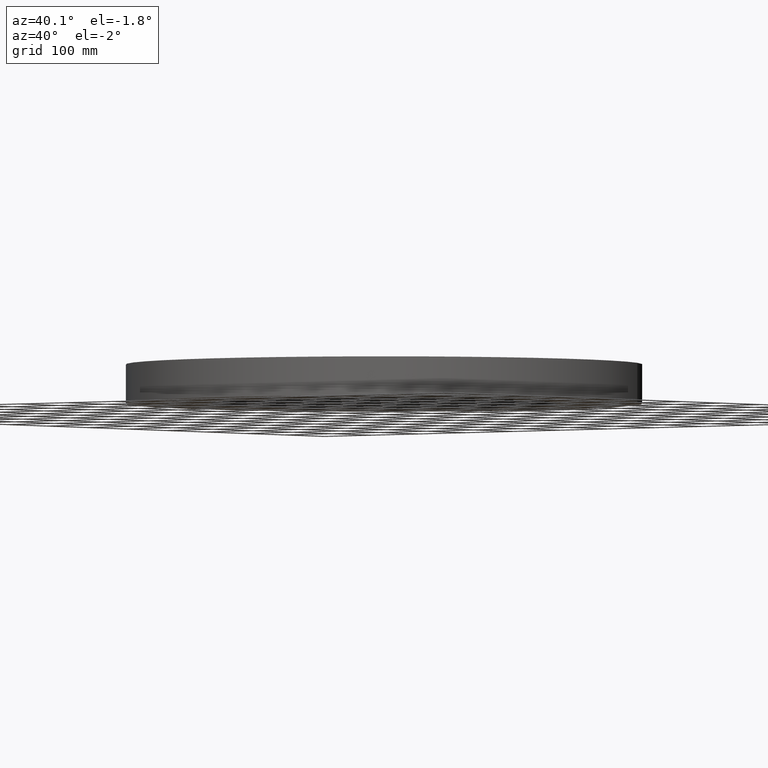
[diagram: clean part render]
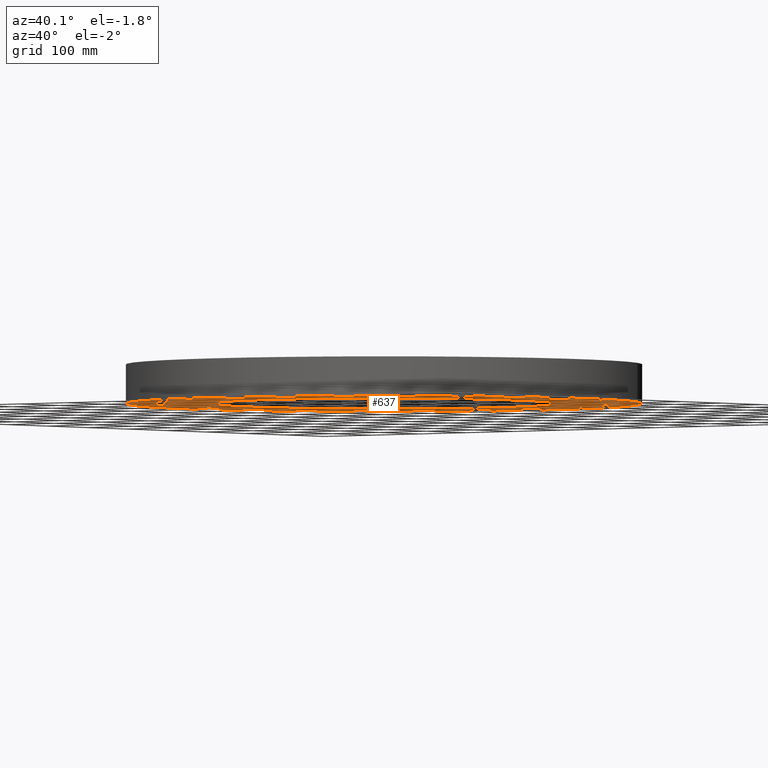
[diagram: same view with one face highlighted and labeled with its STEP entity id]
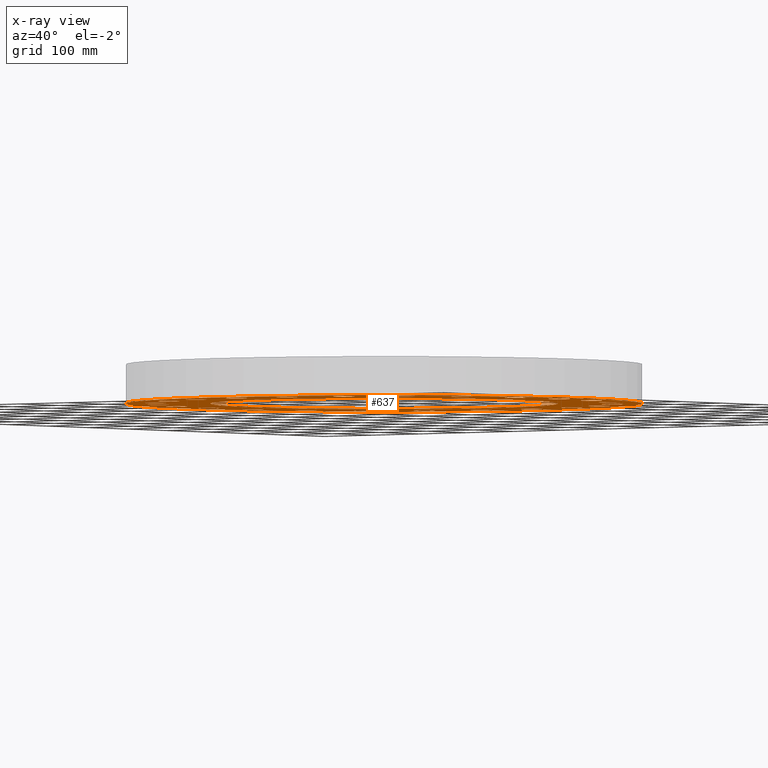
[diagram: x-ray of the same camera — body ghosted, the highlighted face saturated]
A machine part, auxiliary view. The second image highlights one B-rep face of the part: STEP entity #637.
The next image is the same camera in x-ray: the body ghosted, the highlighted face saturated — about 0% of this face is hidden behind the body in this view.
In plain terms, the highlighted planar face has unit normal (0, 0, 1).
Its self-contained STEP definition (entity closure, byte-faithful):
#51=AXIS2_PLACEMENT_3D('Circle Axis2P3D',#49,#50,$) ;
#77=AXIS2_PLACEMENT_3D('Circle Axis2P3D',#75,#76,$) ;
#122=AXIS2_PLACEMENT_3D('Circle Axis2P3D',#120,#121,$) ;
#139=AXIS2_PLACEMENT_3D('Circle Axis2P3D',#137,#138,$) ;
#165=AXIS2_PLACEMENT_3D('Circle Axis2P3D',#163,#164,$) ;
#191=AXIS2_PLACEMENT_3D('Circle Axis2P3D',#189,#190,$) ;
#209=AXIS2_PLACEMENT_3D('Plane Axis2P3D',#206,#207,#208) ;
#225=AXIS2_PLACEMENT_3D('Circle Axis2P3D',#223,#224,$) ;
#234=AXIS2_PLACEMENT_3D('Circle Axis2P3D',#232,#233,$) ;
#243=AXIS2_PLACEMENT_3D('Circle Axis2P3D',#241,#242,$) ;
#252=AXIS2_PLACEMENT_3D('Circle Axis2P3D',#250,#251,$) ;
#261=AXIS2_PLACEMENT_3D('Circle Axis2P3D',#259,#260,$) ;
#270=AXIS2_PLACEMENT_3D('Circle Axis2P3D',#268,#269,$) ;
#279=AXIS2_PLACEMENT_3D('Circle Axis2P3D',#277,#278,$) ;
#288=AXIS2_PLACEMENT_3D('Circle Axis2P3D',#286,#287,$) ;
#297=AXIS2_PLACEMENT_3D('Circle Axis2P3D',#295,#296,$) ;
#306=AXIS2_PLACEMENT_3D('Circle Axis2P3D',#304,#305,$) ;
#315=AXIS2_PLACEMENT_3D('Circle Axis2P3D',#313,#314,$) ;
#324=AXIS2_PLACEMENT_3D('Circle Axis2P3D',#322,#323,$) ;
#333=AXIS2_PLACEMENT_3D('Circle Axis2P3D',#331,#332,$) ;
#342=AXIS2_PLACEMENT_3D('Circle Axis2P3D',#340,#341,$) ;
#351=AXIS2_PLACEMENT_3D('Circle Axis2P3D',#349,#350,$) ;
#360=AXIS2_PLACEMENT_3D('Circle Axis2P3D',#358,#359,$) ;
#369=AXIS2_PLACEMENT_3D('Circle Axis2P3D',#367,#368,$) ;
#378=AXIS2_PLACEMENT_3D('Circle Axis2P3D',#376,#377,$) ;
#387=AXIS2_PLACEMENT_3D('Circle Axis2P3D',#385,#386,$) ;
#396=AXIS2_PLACEMENT_3D('Circle Axis2P3D',#394,#395,$) ;
#405=AXIS2_PLACEMENT_3D('Circle Axis2P3D',#403,#404,$) ;
#414=AXIS2_PLACEMENT_3D('Circle Axis2P3D',#412,#413,$) ;
#423=AXIS2_PLACEMENT_3D('Circle Axis2P3D',#421,#422,$) ;
#432=AXIS2_PLACEMENT_3D('Circle Axis2P3D',#430,#431,$) ;
#441=AXIS2_PLACEMENT_3D('Circle Axis2P3D',#439,#440,$) ;
#450=AXIS2_PLACEMENT_3D('Circle Axis2P3D',#448,#449,$) ;
#459=AXIS2_PLACEMENT_3D('Circle Axis2P3D',#457,#458,$) ;
#468=AXIS2_PLACEMENT_3D('Circle Axis2P3D',#466,#467,$) ;
#477=AXIS2_PLACEMENT_3D('Circle Axis2P3D',#475,#476,$) ;
#486=AXIS2_PLACEMENT_3D('Circle Axis2P3D',#484,#485,$) ;
#495=AXIS2_PLACEMENT_3D('Circle Axis2P3D',#493,#494,$) ;
#504=AXIS2_PLACEMENT_3D('Circle Axis2P3D',#502,#503,$) ;
#513=AXIS2_PLACEMENT_3D('Circle Axis2P3D',#511,#512,$) ;
#522=AXIS2_PLACEMENT_3D('Circle Axis2P3D',#520,#521,$) ;
#531=AXIS2_PLACEMENT_3D('Circle Axis2P3D',#529,#530,$) ;
#540=AXIS2_PLACEMENT_3D('Circle Axis2P3D',#538,#539,$) ;
#549=AXIS2_PLACEMENT_3D('Circle Axis2P3D',#547,#548,$) ;
#558=AXIS2_PLACEMENT_3D('Circle Axis2P3D',#556,#557,$) ;
#567=AXIS2_PLACEMENT_3D('Circle Axis2P3D',#565,#566,$) ;
#576=AXIS2_PLACEMENT_3D('Circle Axis2P3D',#574,#575,$) ;
#585=AXIS2_PLACEMENT_3D('Circle Axis2P3D',#583,#584,$) ;
#594=AXIS2_PLACEMENT_3D('Circle Axis2P3D',#592,#593,$) ;
#603=AXIS2_PLACEMENT_3D('Circle Axis2P3D',#601,#602,$) ;
#612=AXIS2_PLACEMENT_3D('Circle Axis2P3D',#610,#611,$) ;
#621=AXIS2_PLACEMENT_3D('Circle Axis2P3D',#619,#620,$) ;
#630=AXIS2_PLACEMENT_3D('Circle Axis2P3D',#628,#629,$) ;
#44=CARTESIAN_POINT('Vertex',(14.0216619888,0.329605057792,0.)) ;
#49=CARTESIAN_POINT('Axis2P3D Location',(14.6250000001,0.,0.)) ;
#53=CARTESIAN_POINT('Vertex',(15.2283380114,-0.329605057792,0.)) ;
#75=CARTESIAN_POINT('Axis2P3D Location',(14.6250000001,0.,0.)) ;
#101=CARTESIAN_POINT('Vertex',(14.4801122712,7.910521387,1.39870617276E-016)) ;
#117=CARTESIAN_POINT('Vertex',(-14.4801122712,-7.910521387,1.39870617276E-016)) ;
#120=CARTESIAN_POINT('Axis2P3D Location',(0.,0.,0.)) ;
#137=CARTESIAN_POINT('Axis2P3D Location',(0.,0.,0.)) ;
#158=CARTESIAN_POINT('Vertex',(-9.73677852421,5.31922635083,0.)) ;
#163=CARTESIAN_POINT('Axis2P3D Location',(-6.64385432059E-016,-2.09805925913E-016,0.)) ;
#167=CARTESIAN_POINT('Vertex',(9.73677852421,-5.31922635083,0.)) ;
#189=CARTESIAN_POINT('Axis2P3D Location',(-6.64385432059E-016,-2.09805925913E-016,0.)) ;
#206=CARTESIAN_POINT('Axis2P3D Location',(0.,0.,0.)) ;
#223=CARTESIAN_POINT('Axis2P3D Location',(14.1266652095,3.78522853464,0.)) ;
#227=CARTESIAN_POINT('Vertex',(13.4585773761,3.94744720448,0.)) ;
#229=CARTESIAN_POINT('Vertex',(14.794753043,3.6230098648,0.)) ;
#232=CARTESIAN_POINT('Axis2P3D Location',(14.1266652095,3.78522853464,0.)) ;
#241=CARTESIAN_POINT('Axis2P3D Location',(12.6656215304,7.31250000003,0.)) ;
#245=CARTESIAN_POINT('Vertex',(11.9783129566,7.29627734764,0.)) ;
#247=CARTESIAN_POINT('Vertex',(13.3529301042,7.32872265242,0.)) ;
#250=CARTESIAN_POINT('Axis2P3D Location',(12.6656215304,7.31250000003,0.)) ;
#259=CARTESIAN_POINT('Axis2P3D Location',(10.3414366749,10.3414366749,0.)) ;
#263=CARTESIAN_POINT('Vertex',(9.68174630428,10.1478782472,0.)) ;
#265=CARTESIAN_POINT('Vertex',(11.0011270455,10.5349951026,0.)) ;
#268=CARTESIAN_POINT('Axis2P3D Location',(10.3414366749,10.3414366749,0.)) ;
#277=CARTESIAN_POINT('Axis2P3D Location',(7.31250000003,12.6656215304,0.)) ;
#281=CARTESIAN_POINT('Vertex',(6.72538464111,12.3079180144,0.)) ;
#283=CARTESIAN_POINT('Vertex',(7.89961535894,13.0233250464,0.)) ;
#286=CARTESIAN_POINT('Axis2P3D Location',(7.31250000003,12.6656215304,0.)) ;
#295=CARTESIAN_POINT('Axis2P3D Location',(3.78522853464,14.1266652095,0.)) ;
#299=CARTESIAN_POINT('Vertex',(3.31069912888,13.6291935088,0.)) ;
#301=CARTESIAN_POINT('Vertex',(4.2597579404,14.6241369103,0.)) ;
#304=CARTESIAN_POINT('Axis2P3D Location',(3.78522853464,14.1266652095,0.)) ;
#313=CARTESIAN_POINT('Axis2P3D Location',(-1.39870617276E-015,14.6250000001,0.)) ;
#317=CARTESIAN_POINT('Vertex',(-0.329605057792,14.0216619888,0.)) ;
#319=CARTESIAN_POINT('Vertex',(0.329605057792,15.2283380114,0.)) ;
#322=CARTESIAN_POINT('Axis2P3D Location',(-4.19611851827E-016,14.6250000001,0.)) ;
#331=CARTESIAN_POINT('Axis2P3D Location',(-3.78522853464,14.1266652095,0.)) ;
#335=CARTESIAN_POINT('Vertex',(-3.94744720448,13.4585773761,0.)) ;
#337=CARTESIAN_POINT('Vertex',(-3.6230098648,14.794753043,0.)) ;
#340=CARTESIAN_POINT('Axis2P3D Location',(-3.78522853464,14.1266652095,0.)) ;
#349=CARTESIAN_POINT('Axis2P3D Location',(-7.31250000003,12.6656215304,0.)) ;
#353=CARTESIAN_POINT('Vertex',(-7.29627734764,11.9783129566,0.)) ;
#355=CARTESIAN_POINT('Vertex',(-7.32872265242,13.3529301042,0.)) ;
#358=CARTESIAN_POINT('Axis2P3D Location',(-7.31250000003,12.6656215304,0.)) ;
#367=CARTESIAN_POINT('Axis2P3D Location',(-10.3414366749,10.3414366749,0.)) ;
#371=CARTESIAN_POINT('Vertex',(-10.1478782472,9.68174630428,0.)) ;
#373=CARTESIAN_POINT('Vertex',(-10.5349951026,11.0011270455,0.)) ;
#376=CARTESIAN_POINT('Axis2P3D Location',(-10.3414366749,10.3414366749,0.)) ;
#385=CARTESIAN_POINT('Axis2P3D Location',(-12.6656215304,7.31250000003,0.)) ;
#389=CARTESIAN_POINT('Vertex',(-12.3079180144,6.72538464111,0.)) ;
#391=CARTESIAN_POINT('Vertex',(-13.0233250464,7.89961535894,0.)) ;
#394=CARTESIAN_POINT('Axis2P3D Location',(-12.6656215304,7.31250000003,0.)) ;
#403=CARTESIAN_POINT('Axis2P3D Location',(-14.1266652095,3.78522853464,0.)) ;
#407=CARTESIAN_POINT('Vertex',(-13.6291935088,3.31069912888,0.)) ;
#409=CARTESIAN_POINT('Vertex',(-14.6241369103,4.2597579404,0.)) ;
#412=CARTESIAN_POINT('Axis2P3D Location',(-14.1266652095,3.78522853464,0.)) ;
#421=CARTESIAN_POINT('Axis2P3D Location',(-14.6250000001,2.23792987641E-015,0.)) ;
#425=CARTESIAN_POINT('Vertex',(-14.0216619888,-0.329605057792,0.)) ;
#427=CARTESIAN_POINT('Vertex',(-15.2283380114,0.329605057792,0.)) ;
#430=CARTESIAN_POINT('Axis2P3D Location',(-14.6250000001,2.30786518505E-015,0.)) ;
#439=CARTESIAN_POINT('Axis2P3D Location',(-14.1266652095,-3.78522853464,0.)) ;
#443=CARTESIAN_POINT('Vertex',(-13.4585773761,-3.94744720448,0.)) ;
#445=CARTESIAN_POINT('Vertex',(-14.794753043,-3.6230098648,0.)) ;
#448=CARTESIAN_POINT('Axis2P3D Location',(-14.1266652095,-3.78522853464,0.)) ;
#457=CARTESIAN_POINT('Axis2P3D Location',(-12.6656215304,-7.31250000003,0.)) ;
#461=CARTESIAN_POINT('Vertex',(-11.9783129566,-7.29627734764,0.)) ;
#463=CARTESIAN_POINT('Vertex',(-13.3529301042,-7.32872265242,0.)) ;
#466=CARTESIAN_POINT('Axis2P3D Location',(-12.6656215304,-7.31250000003,0.)) ;
#475=CARTESIAN_POINT('Axis2P3D Location',(-10.3414366749,-10.3414366749,0.)) ;
#479=CARTESIAN_POINT('Vertex',(-9.68174630428,-10.1478782472,0.)) ;
#481=CARTESIAN_POINT('Vertex',(-11.0011270455,-10.5349951026,0.)) ;
#484=CARTESIAN_POINT('Axis2P3D Location',(-10.3414366749,-10.3414366749,0.)) ;
#493=CARTESIAN_POINT('Axis2P3D Location',(-7.31250000003,-12.6656215304,0.)) ;
#497=CARTESIAN_POINT('Vertex',(-6.72538464111,-12.3079180144,0.)) ;
#499=CARTESIAN_POINT('Vertex',(-7.89961535894,-13.0233250464,0.)) ;
#502=CARTESIAN_POINT('Axis2P3D Location',(-7.31250000003,-12.6656215304,0.)) ;
#511=CARTESIAN_POINT('Axis2P3D Location',(-3.78522853464,-14.1266652095,0.)) ;
#515=CARTESIAN_POINT('Vertex',(-3.31069912888,-13.6291935088,0.)) ;
#517=CARTESIAN_POINT('Vertex',(-4.2597579404,-14.6241369103,0.)) ;
#520=CARTESIAN_POINT('Axis2P3D Location',(-3.78522853464,-14.1266652095,0.)) ;
#529=CARTESIAN_POINT('Axis2P3D Location',(-2.44773580232E-015,-14.6250000001,0.)) ;
#533=CARTESIAN_POINT('Vertex',(0.329605057792,-14.0216619888,0.)) ;
#535=CARTESIAN_POINT('Vertex',(-0.329605057792,-15.2283380114,0.)) ;
#538=CARTESIAN_POINT('Axis2P3D Location',(-3.7065713578E-015,-14.6250000001,0.)) ;
#547=CARTESIAN_POINT('Axis2P3D Location',(3.78522853464,-14.1266652095,0.)) ;
#551=CARTESIAN_POINT('Vertex',(3.94744720448,-13.4585773761,0.)) ;
#553=CARTESIAN_POINT('Vertex',(3.6230098648,-14.794753043,0.)) ;
#556=CARTESIAN_POINT('Axis2P3D Location',(3.78522853464,-14.1266652095,0.)) ;
#565=CARTESIAN_POINT('Axis2P3D Location',(7.31250000003,-12.6656215304,0.)) ;
#569=CARTESIAN_POINT('Vertex',(7.29627734764,-11.9783129566,0.)) ;
#571=CARTESIAN_POINT('Vertex',(7.32872265242,-13.3529301042,0.)) ;
#574=CARTESIAN_POINT('Axis2P3D Location',(7.31250000003,-12.6656215304,0.)) ;
#583=CARTESIAN_POINT('Axis2P3D Location',(10.3414366749,-10.3414366749,0.)) ;
#587=CARTESIAN_POINT('Vertex',(10.1478782472,-9.68174630428,0.)) ;
#589=CARTESIAN_POINT('Vertex',(10.5349951026,-11.0011270455,0.)) ;
#592=CARTESIAN_POINT('Axis2P3D Location',(10.3414366749,-10.3414366749,0.)) ;
#601=CARTESIAN_POINT('Axis2P3D Location',(12.6656215304,-7.31250000003,0.)) ;
#605=CARTESIAN_POINT('Vertex',(12.3079180144,-6.72538464111,0.)) ;
#607=CARTESIAN_POINT('Vertex',(13.0233250464,-7.89961535894,0.)) ;
#610=CARTESIAN_POINT('Axis2P3D Location',(12.6656215304,-7.31250000003,0.)) ;
#619=CARTESIAN_POINT('Axis2P3D Location',(14.1266652095,-3.78522853464,0.)) ;
#623=CARTESIAN_POINT('Vertex',(13.6291935088,-3.31069912888,0.)) ;
#625=CARTESIAN_POINT('Vertex',(14.6241369103,-4.2597579404,0.)) ;
#628=CARTESIAN_POINT('Axis2P3D Location',(14.1266652095,-3.78522853464,0.)) ;
#50=DIRECTION('Axis2P3D Direction',(0.,-0.,-0.0393700787402)) ;
#76=DIRECTION('Axis2P3D Direction',(0.,-0.,-0.0393700787402)) ;
#121=DIRECTION('Axis2P3D Direction',(0.,0.,0.0393700787402)) ;
#138=DIRECTION('Axis2P3D Direction',(0.,0.,0.0393700787402)) ;
#164=DIRECTION('Axis2P3D Direction',(0.,-0.,-0.0393700787402)) ;
#190=DIRECTION('Axis2P3D Direction',(0.,-0.,-0.0393700787402)) ;
#207=DIRECTION('Axis2P3D Direction',(0.,0.,0.0393700787402)) ;
#208=DIRECTION('Axis2P3D XDirection',(0.0393700787402,0.,0.)) ;
#224=DIRECTION('Axis2P3D Direction',(0.,0.,0.0393700787402)) ;
#233=DIRECTION('Axis2P3D Direction',(0.,0.,0.0393700787402)) ;
#242=DIRECTION('Axis2P3D Direction',(0.,0.,0.0393700787402)) ;
#251=DIRECTION('Axis2P3D Direction',(0.,0.,0.0393700787402)) ;
#260=DIRECTION('Axis2P3D Direction',(0.,0.,0.0393700787402)) ;
#269=DIRECTION('Axis2P3D Direction',(0.,0.,0.0393700787402)) ;
#278=DIRECTION('Axis2P3D Direction',(0.,0.,0.0393700787402)) ;
#287=DIRECTION('Axis2P3D Direction',(0.,0.,0.0393700787402)) ;
#296=DIRECTION('Axis2P3D Direction',(0.,0.,0.0393700787402)) ;
#305=DIRECTION('Axis2P3D Direction',(0.,0.,0.0393700787402)) ;
#314=DIRECTION('Axis2P3D Direction',(0.,0.,0.0393700787402)) ;
#323=DIRECTION('Axis2P3D Direction',(0.,0.,0.0393700787402)) ;
#332=DIRECTION('Axis2P3D Direction',(0.,0.,0.0393700787402)) ;
#341=DIRECTION('Axis2P3D Direction',(0.,0.,0.0393700787402)) ;
#350=DIRECTION('Axis2P3D Direction',(0.,0.,0.0393700787402)) ;
#359=DIRECTION('Axis2P3D Direction',(0.,0.,0.0393700787402)) ;
#368=DIRECTION('Axis2P3D Direction',(0.,0.,0.0393700787402)) ;
#377=DIRECTION('Axis2P3D Direction',(0.,0.,0.0393700787402)) ;
#386=DIRECTION('Axis2P3D Direction',(0.,0.,0.0393700787402)) ;
#395=DIRECTION('Axis2P3D Direction',(0.,0.,0.0393700787402)) ;
#404=DIRECTION('Axis2P3D Direction',(0.,0.,0.0393700787402)) ;
#413=DIRECTION('Axis2P3D Direction',(0.,0.,0.0393700787402)) ;
#422=DIRECTION('Axis2P3D Direction',(0.,0.,0.0393700787402)) ;
#431=DIRECTION('Axis2P3D Direction',(0.,0.,0.0393700787402)) ;
#440=DIRECTION('Axis2P3D Direction',(0.,0.,0.0393700787402)) ;
#449=DIRECTION('Axis2P3D Direction',(0.,0.,0.0393700787402)) ;
#458=DIRECTION('Axis2P3D Direction',(0.,0.,0.0393700787402)) ;
#467=DIRECTION('Axis2P3D Direction',(0.,0.,0.0393700787402)) ;
#476=DIRECTION('Axis2P3D Direction',(0.,0.,0.0393700787402)) ;
#485=DIRECTION('Axis2P3D Direction',(0.,0.,0.0393700787402)) ;
#494=DIRECTION('Axis2P3D Direction',(0.,0.,0.0393700787402)) ;
#503=DIRECTION('Axis2P3D Direction',(0.,0.,0.0393700787402)) ;
#512=DIRECTION('Axis2P3D Direction',(0.,0.,0.0393700787402)) ;
#521=DIRECTION('Axis2P3D Direction',(0.,0.,0.0393700787402)) ;
#530=DIRECTION('Axis2P3D Direction',(0.,0.,0.0393700787402)) ;
#539=DIRECTION('Axis2P3D Direction',(0.,0.,0.0393700787402)) ;
#548=DIRECTION('Axis2P3D Direction',(0.,0.,0.0393700787402)) ;
#557=DIRECTION('Axis2P3D Direction',(0.,0.,0.0393700787402)) ;
#566=DIRECTION('Axis2P3D Direction',(0.,0.,0.0393700787402)) ;
#575=DIRECTION('Axis2P3D Direction',(0.,0.,0.0393700787402)) ;
#584=DIRECTION('Axis2P3D Direction',(0.,0.,0.0393700787402)) ;
#593=DIRECTION('Axis2P3D Direction',(0.,0.,0.0393700787402)) ;
#602=DIRECTION('Axis2P3D Direction',(0.,0.,0.0393700787402)) ;
#611=DIRECTION('Axis2P3D Direction',(0.,0.,0.0393700787402)) ;
#620=DIRECTION('Axis2P3D Direction',(0.,0.,0.0393700787402)) ;
#629=DIRECTION('Axis2P3D Direction',(0.,0.,0.0393700787402)) ;
#212=ORIENTED_EDGE('',*,*,#124,.F.) ;
#213=ORIENTED_EDGE('',*,*,#141,.F.) ;
#216=ORIENTED_EDGE('',*,*,#55,.T.) ;
#217=ORIENTED_EDGE('',*,*,#79,.T.) ;
#220=ORIENTED_EDGE('',*,*,#169,.T.) ;
#221=ORIENTED_EDGE('',*,*,#193,.T.) ;
#238=ORIENTED_EDGE('',*,*,#231,.T.) ;
#239=ORIENTED_EDGE('',*,*,#236,.T.) ;
#256=ORIENTED_EDGE('',*,*,#249,.T.) ;
#257=ORIENTED_EDGE('',*,*,#254,.T.) ;
#274=ORIENTED_EDGE('',*,*,#267,.T.) ;
#275=ORIENTED_EDGE('',*,*,#272,.T.) ;
#292=ORIENTED_EDGE('',*,*,#285,.T.) ;
#293=ORIENTED_EDGE('',*,*,#290,.T.) ;
#310=ORIENTED_EDGE('',*,*,#303,.T.) ;
#311=ORIENTED_EDGE('',*,*,#308,.T.) ;
#328=ORIENTED_EDGE('',*,*,#321,.T.) ;
#329=ORIENTED_EDGE('',*,*,#326,.T.) ;
#346=ORIENTED_EDGE('',*,*,#339,.T.) ;
#347=ORIENTED_EDGE('',*,*,#344,.T.) ;
#364=ORIENTED_EDGE('',*,*,#357,.T.) ;
#365=ORIENTED_EDGE('',*,*,#362,.T.) ;
#382=ORIENTED_EDGE('',*,*,#375,.T.) ;
#383=ORIENTED_EDGE('',*,*,#380,.T.) ;
#400=ORIENTED_EDGE('',*,*,#393,.T.) ;
#401=ORIENTED_EDGE('',*,*,#398,.T.) ;
#418=ORIENTED_EDGE('',*,*,#411,.T.) ;
#419=ORIENTED_EDGE('',*,*,#416,.T.) ;
#436=ORIENTED_EDGE('',*,*,#429,.T.) ;
#437=ORIENTED_EDGE('',*,*,#434,.T.) ;
#454=ORIENTED_EDGE('',*,*,#447,.T.) ;
#455=ORIENTED_EDGE('',*,*,#452,.T.) ;
#472=ORIENTED_EDGE('',*,*,#465,.T.) ;
#473=ORIENTED_EDGE('',*,*,#470,.T.) ;
#490=ORIENTED_EDGE('',*,*,#483,.T.) ;
#491=ORIENTED_EDGE('',*,*,#488,.T.) ;
#508=ORIENTED_EDGE('',*,*,#501,.T.) ;
#509=ORIENTED_EDGE('',*,*,#506,.T.) ;
#526=ORIENTED_EDGE('',*,*,#519,.T.) ;
#527=ORIENTED_EDGE('',*,*,#524,.T.) ;
#544=ORIENTED_EDGE('',*,*,#537,.T.) ;
#545=ORIENTED_EDGE('',*,*,#542,.T.) ;
#562=ORIENTED_EDGE('',*,*,#555,.T.) ;
#563=ORIENTED_EDGE('',*,*,#560,.T.) ;
#580=ORIENTED_EDGE('',*,*,#573,.T.) ;
#581=ORIENTED_EDGE('',*,*,#578,.T.) ;
#598=ORIENTED_EDGE('',*,*,#591,.T.) ;
#599=ORIENTED_EDGE('',*,*,#596,.T.) ;
#616=ORIENTED_EDGE('',*,*,#609,.T.) ;
#617=ORIENTED_EDGE('',*,*,#614,.T.) ;
#634=ORIENTED_EDGE('',*,*,#627,.T.) ;
#635=ORIENTED_EDGE('',*,*,#632,.T.) ;
#218=FACE_BOUND('',#215,.T.) ;
#222=FACE_BOUND('',#219,.T.) ;
#240=FACE_BOUND('',#237,.T.) ;
#258=FACE_BOUND('',#255,.T.) ;
#276=FACE_BOUND('',#273,.T.) ;
#294=FACE_BOUND('',#291,.T.) ;
#312=FACE_BOUND('',#309,.T.) ;
#330=FACE_BOUND('',#327,.T.) ;
#348=FACE_BOUND('',#345,.T.) ;
#366=FACE_BOUND('',#363,.T.) ;
#384=FACE_BOUND('',#381,.T.) ;
#402=FACE_BOUND('',#399,.T.) ;
#420=FACE_BOUND('',#417,.T.) ;
#438=FACE_BOUND('',#435,.T.) ;
#456=FACE_BOUND('',#453,.T.) ;
#474=FACE_BOUND('',#471,.T.) ;
#492=FACE_BOUND('',#489,.T.) ;
#510=FACE_BOUND('',#507,.T.) ;
#528=FACE_BOUND('',#525,.T.) ;
#546=FACE_BOUND('',#543,.T.) ;
#564=FACE_BOUND('',#561,.T.) ;
#582=FACE_BOUND('',#579,.T.) ;
#600=FACE_BOUND('',#597,.T.) ;
#618=FACE_BOUND('',#615,.T.) ;
#636=FACE_BOUND('',#633,.T.) ;
#637=ADVANCED_FACE('PartBody',(#214,#218,#222,#240,#258,#276,#294,#312,#330,#348,#366,#384,#402,#420,#438,#456,#474,#492,#510,#528,#546,#564,#582,#600,#618,#636),#210,.F.) ;
#52=CIRCLE('generated circle',#51,0.687500000003) ;
#78=CIRCLE('generated circle',#77,0.687500000003) ;
#123=CIRCLE('generated circle',#122,16.5000000001) ;
#140=CIRCLE('generated circle',#139,16.5000000001) ;
#166=CIRCLE('generated circle',#165,11.095) ;
#192=CIRCLE('generated circle',#191,11.095) ;
#226=CIRCLE('generated circle',#225,0.687500000003) ;
#235=CIRCLE('generated circle',#234,0.687500000003) ;
#244=CIRCLE('generated circle',#243,0.687500000003) ;
#253=CIRCLE('generated circle',#252,0.687500000003) ;
#262=CIRCLE('generated circle',#261,0.687500000003) ;
#271=CIRCLE('generated circle',#270,0.687500000003) ;
#280=CIRCLE('generated circle',#279,0.687500000003) ;
#289=CIRCLE('generated circle',#288,0.687500000003) ;
#298=CIRCLE('generated circle',#297,0.687500000003) ;
#307=CIRCLE('generated circle',#306,0.687500000003) ;
#316=CIRCLE('generated circle',#315,0.687500000003) ;
#325=CIRCLE('generated circle',#324,0.687500000003) ;
#334=CIRCLE('generated circle',#333,0.687500000003) ;
#343=CIRCLE('generated circle',#342,0.687500000003) ;
#352=CIRCLE('generated circle',#351,0.687500000003) ;
#361=CIRCLE('generated circle',#360,0.687500000003) ;
#370=CIRCLE('generated circle',#369,0.687500000003) ;
#379=CIRCLE('generated circle',#378,0.687500000003) ;
#388=CIRCLE('generated circle',#387,0.687500000003) ;
#397=CIRCLE('generated circle',#396,0.687500000003) ;
#406=CIRCLE('generated circle',#405,0.687500000003) ;
#415=CIRCLE('generated circle',#414,0.687500000003) ;
#424=CIRCLE('generated circle',#423,0.687500000003) ;
#433=CIRCLE('generated circle',#432,0.687500000003) ;
#442=CIRCLE('generated circle',#441,0.687500000003) ;
#451=CIRCLE('generated circle',#450,0.687500000003) ;
#460=CIRCLE('generated circle',#459,0.687500000003) ;
#469=CIRCLE('generated circle',#468,0.687500000003) ;
#478=CIRCLE('generated circle',#477,0.687500000003) ;
#487=CIRCLE('generated circle',#486,0.687500000003) ;
#496=CIRCLE('generated circle',#495,0.687500000003) ;
#505=CIRCLE('generated circle',#504,0.687500000003) ;
#514=CIRCLE('generated circle',#513,0.687500000003) ;
#523=CIRCLE('generated circle',#522,0.687500000003) ;
#532=CIRCLE('generated circle',#531,0.687500000003) ;
#541=CIRCLE('generated circle',#540,0.687500000003) ;
#550=CIRCLE('generated circle',#549,0.687500000003) ;
#559=CIRCLE('generated circle',#558,0.687500000003) ;
#568=CIRCLE('generated circle',#567,0.687500000003) ;
#577=CIRCLE('generated circle',#576,0.687500000003) ;
#586=CIRCLE('generated circle',#585,0.687500000003) ;
#595=CIRCLE('generated circle',#594,0.687500000003) ;
#604=CIRCLE('generated circle',#603,0.687500000003) ;
#613=CIRCLE('generated circle',#612,0.687500000003) ;
#622=CIRCLE('generated circle',#621,0.687500000003) ;
#631=CIRCLE('generated circle',#630,0.687500000003) ;
#55=EDGE_CURVE('',#54,#45,#52,.F.) ;
#79=EDGE_CURVE('',#45,#54,#78,.F.) ;
#124=EDGE_CURVE('',#118,#102,#123,.T.) ;
#141=EDGE_CURVE('',#102,#118,#140,.T.) ;
#169=EDGE_CURVE('',#168,#159,#166,.F.) ;
#193=EDGE_CURVE('',#159,#168,#192,.F.) ;
#231=EDGE_CURVE('',#228,#230,#226,.T.) ;
#236=EDGE_CURVE('',#230,#228,#235,.T.) ;
#249=EDGE_CURVE('',#246,#248,#244,.T.) ;
#254=EDGE_CURVE('',#248,#246,#253,.T.) ;
#267=EDGE_CURVE('',#264,#266,#262,.T.) ;
#272=EDGE_CURVE('',#266,#264,#271,.T.) ;
#285=EDGE_CURVE('',#282,#284,#280,.T.) ;
#290=EDGE_CURVE('',#284,#282,#289,.T.) ;
#303=EDGE_CURVE('',#300,#302,#298,.T.) ;
#308=EDGE_CURVE('',#302,#300,#307,.T.) ;
#321=EDGE_CURVE('',#318,#320,#316,.T.) ;
#326=EDGE_CURVE('',#320,#318,#325,.T.) ;
#339=EDGE_CURVE('',#336,#338,#334,.T.) ;
#344=EDGE_CURVE('',#338,#336,#343,.T.) ;
#357=EDGE_CURVE('',#354,#356,#352,.T.) ;
#362=EDGE_CURVE('',#356,#354,#361,.T.) ;
#375=EDGE_CURVE('',#372,#374,#370,.T.) ;
#380=EDGE_CURVE('',#374,#372,#379,.T.) ;
#393=EDGE_CURVE('',#390,#392,#388,.T.) ;
#398=EDGE_CURVE('',#392,#390,#397,.T.) ;
#411=EDGE_CURVE('',#408,#410,#406,.T.) ;
#416=EDGE_CURVE('',#410,#408,#415,.T.) ;
#429=EDGE_CURVE('',#426,#428,#424,.T.) ;
#434=EDGE_CURVE('',#428,#426,#433,.T.) ;
#447=EDGE_CURVE('',#444,#446,#442,.T.) ;
#452=EDGE_CURVE('',#446,#444,#451,.T.) ;
#465=EDGE_CURVE('',#462,#464,#460,.T.) ;
#470=EDGE_CURVE('',#464,#462,#469,.T.) ;
#483=EDGE_CURVE('',#480,#482,#478,.T.) ;
#488=EDGE_CURVE('',#482,#480,#487,.T.) ;
#501=EDGE_CURVE('',#498,#500,#496,.T.) ;
#506=EDGE_CURVE('',#500,#498,#505,.T.) ;
#519=EDGE_CURVE('',#516,#518,#514,.T.) ;
#524=EDGE_CURVE('',#518,#516,#523,.T.) ;
#537=EDGE_CURVE('',#534,#536,#532,.T.) ;
#542=EDGE_CURVE('',#536,#534,#541,.T.) ;
#555=EDGE_CURVE('',#552,#554,#550,.T.) ;
#560=EDGE_CURVE('',#554,#552,#559,.T.) ;
#573=EDGE_CURVE('',#570,#572,#568,.T.) ;
#578=EDGE_CURVE('',#572,#570,#577,.T.) ;
#591=EDGE_CURVE('',#588,#590,#586,.T.) ;
#596=EDGE_CURVE('',#590,#588,#595,.T.) ;
#609=EDGE_CURVE('',#606,#608,#604,.T.) ;
#614=EDGE_CURVE('',#608,#606,#613,.T.) ;
#627=EDGE_CURVE('',#624,#626,#622,.T.) ;
#632=EDGE_CURVE('',#626,#624,#631,.T.) ;
#211=EDGE_LOOP('',(#212,#213)) ;
#215=EDGE_LOOP('',(#216,#217)) ;
#219=EDGE_LOOP('',(#220,#221)) ;
#237=EDGE_LOOP('',(#238,#239)) ;
#255=EDGE_LOOP('',(#256,#257)) ;
#273=EDGE_LOOP('',(#274,#275)) ;
#291=EDGE_LOOP('',(#292,#293)) ;
#309=EDGE_LOOP('',(#310,#311)) ;
#327=EDGE_LOOP('',(#328,#329)) ;
#345=EDGE_LOOP('',(#346,#347)) ;
#363=EDGE_LOOP('',(#364,#365)) ;
#381=EDGE_LOOP('',(#382,#383)) ;
#399=EDGE_LOOP('',(#400,#401)) ;
#417=EDGE_LOOP('',(#418,#419)) ;
#435=EDGE_LOOP('',(#436,#437)) ;
#453=EDGE_LOOP('',(#454,#455)) ;
#471=EDGE_LOOP('',(#472,#473)) ;
#489=EDGE_LOOP('',(#490,#491)) ;
#507=EDGE_LOOP('',(#508,#509)) ;
#525=EDGE_LOOP('',(#526,#527)) ;
#543=EDGE_LOOP('',(#544,#545)) ;
#561=EDGE_LOOP('',(#562,#563)) ;
#579=EDGE_LOOP('',(#580,#581)) ;
#597=EDGE_LOOP('',(#598,#599)) ;
#615=EDGE_LOOP('',(#616,#617)) ;
#633=EDGE_LOOP('',(#634,#635)) ;
#214=FACE_OUTER_BOUND('',#211,.T.) ;
#210=PLANE('',#209) ;
#45=VERTEX_POINT('',#44) ;
#54=VERTEX_POINT('',#53) ;
#102=VERTEX_POINT('',#101) ;
#118=VERTEX_POINT('',#117) ;
#159=VERTEX_POINT('',#158) ;
#168=VERTEX_POINT('',#167) ;
#228=VERTEX_POINT('',#227) ;
#230=VERTEX_POINT('',#229) ;
#246=VERTEX_POINT('',#245) ;
#248=VERTEX_POINT('',#247) ;
#264=VERTEX_POINT('',#263) ;
#266=VERTEX_POINT('',#265) ;
#282=VERTEX_POINT('',#281) ;
#284=VERTEX_POINT('',#283) ;
#300=VERTEX_POINT('',#299) ;
#302=VERTEX_POINT('',#301) ;
#318=VERTEX_POINT('',#317) ;
#320=VERTEX_POINT('',#319) ;
#336=VERTEX_POINT('',#335) ;
#338=VERTEX_POINT('',#337) ;
#354=VERTEX_POINT('',#353) ;
#356=VERTEX_POINT('',#355) ;
#372=VERTEX_POINT('',#371) ;
#374=VERTEX_POINT('',#373) ;
#390=VERTEX_POINT('',#389) ;
#392=VERTEX_POINT('',#391) ;
#408=VERTEX_POINT('',#407) ;
#410=VERTEX_POINT('',#409) ;
#426=VERTEX_POINT('',#425) ;
#428=VERTEX_POINT('',#427) ;
#444=VERTEX_POINT('',#443) ;
#446=VERTEX_POINT('',#445) ;
#462=VERTEX_POINT('',#461) ;
#464=VERTEX_POINT('',#463) ;
#480=VERTEX_POINT('',#479) ;
#482=VERTEX_POINT('',#481) ;
#498=VERTEX_POINT('',#497) ;
#500=VERTEX_POINT('',#499) ;
#516=VERTEX_POINT('',#515) ;
#518=VERTEX_POINT('',#517) ;
#534=VERTEX_POINT('',#533) ;
#536=VERTEX_POINT('',#535) ;
#552=VERTEX_POINT('',#551) ;
#554=VERTEX_POINT('',#553) ;
#570=VERTEX_POINT('',#569) ;
#572=VERTEX_POINT('',#571) ;
#588=VERTEX_POINT('',#587) ;
#590=VERTEX_POINT('',#589) ;
#606=VERTEX_POINT('',#605) ;
#608=VERTEX_POINT('',#607) ;
#624=VERTEX_POINT('',#623) ;
#626=VERTEX_POINT('',#625) ;